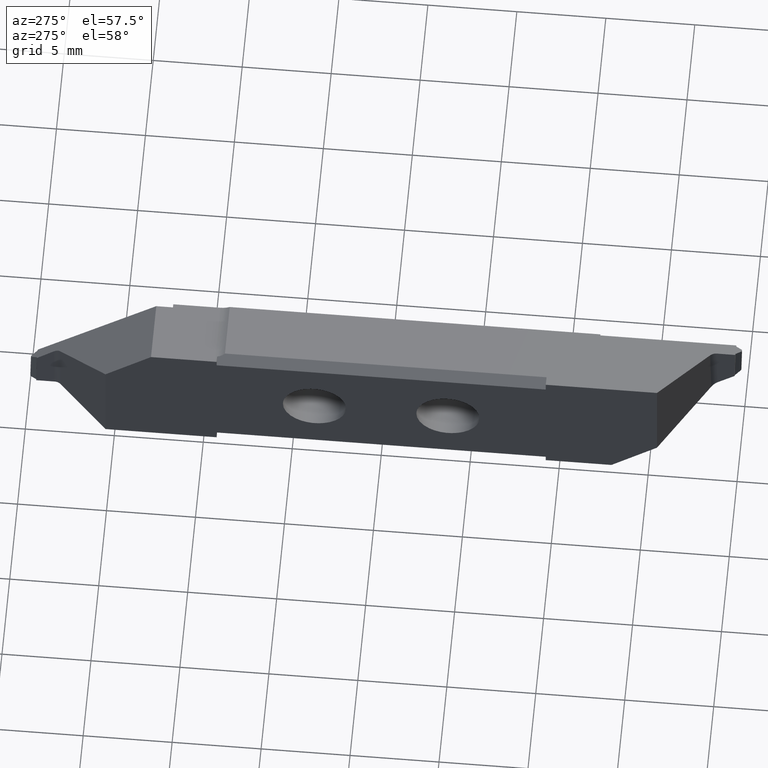
[diagram: clean part render]
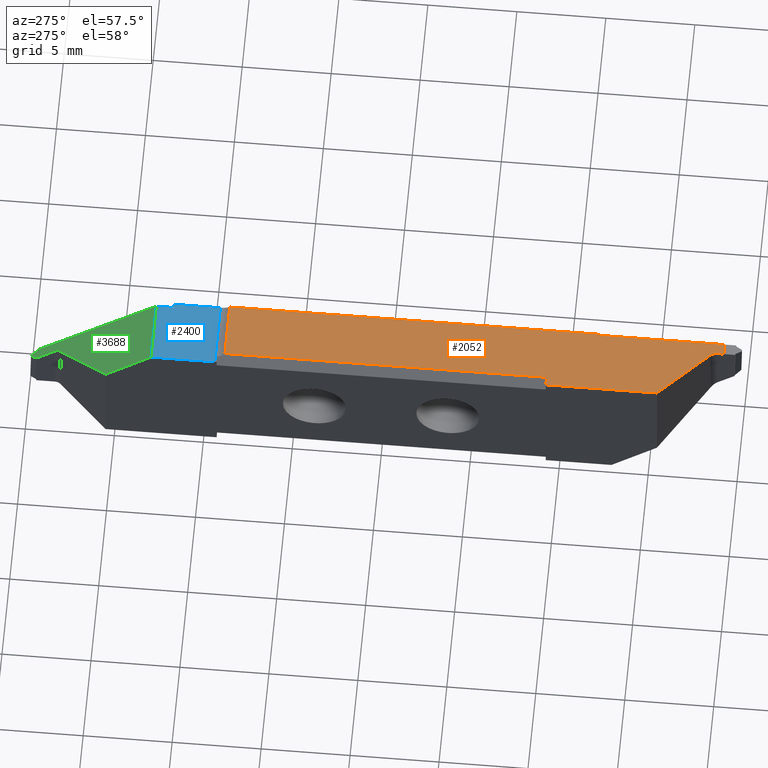
[diagram: same view with three faces highlighted in distinct colors, each labeled with its STEP entity id]
A machine part, auxiliary view with three faces highlighted in distinct colors.
Their STEP definitions:

[orange] entity #2052 — the highlighted planar face has unit normal (-0, 0, -1).
#288=CARTESIAN_POINT('',(4.337057506E-16,10.75,1.501021529E-13));
#289=VERTEX_POINT('',#288);
#300=CARTESIAN_POINT('',(4.337057506E-16,10.75,1.501021529E-13));
#301=DIRECTION('',(0.,-1.,-4.804890857E-14));
#302=VECTOR('',#301,6.247890219);
#303=LINE('',#300,#302);
#304=CARTESIAN_POINT('',(4.336483641E-16,4.502109781,-1.501021529E-13));
#305=VERTEX_POINT('',#304);
#306=EDGE_CURVE('',#289,#305,#303,.T.);
#795=CARTESIAN_POINT('',(3.53,1.,-6.963451074E-07));
#796=DIRECTION('',(0.,1.,0.));
#797=VECTOR('',#796,7.);
#798=LINE('',#795,#797);
#799=CARTESIAN_POINT('',(3.53,1.,-6.963451074E-07));
#800=VERTEX_POINT('',#799);
#801=CARTESIAN_POINT('',(3.53,8.,-6.963451074E-07));
#802=VERTEX_POINT('',#801);
#803=EDGE_CURVE('',#800,#802,#798,.T.);
#915=CARTESIAN_POINT('',(3.53,1.,-6.963451074E-07));
#916=DIRECTION('',(-1.,0.,1.972648602E-07));
#917=VECTOR('',#916,0.6349971086);
#918=LINE('',#915,#917);
#919=CARTESIAN_POINT('',(2.895002891,1.,-5.710824915E-07));
#920=VERTEX_POINT('',#919);
#921=EDGE_CURVE('',#800,#920,#918,.T.);
#1167=CARTESIAN_POINT('',(3.53,8.,-6.963451074E-07));
#1168=DIRECTION('',(1.,0.,-1.972648648E-07));
#1169=VECTOR('',#1168,0.07);
#1170=LINE('',#1167,#1169);
#1171=CARTESIAN_POINT('',(3.6,8.,-7.101536479E-07));
#1172=VERTEX_POINT('',#1171);
#1173=EDGE_CURVE('',#802,#1172,#1170,.T.);
#1721=CARTESIAN_POINT('',(2.895002891,1.399923956,-5.710824915E-07));
#1722=DIRECTION('',(0.,-1.,0.));
#1723=VECTOR('',#1722,0.3999239562);
#1724=LINE('',#1721,#1723);
#1725=CARTESIAN_POINT('',(2.895002891,1.399923956,-5.710824915E-07));
#1726=VERTEX_POINT('',#1725);
#1727=EDGE_CURVE('',#1726,#920,#1724,.T.);
#1825=CARTESIAN_POINT('',(2.748480118,1.753629663,-5.42178697E-07));
#1826=VERTEX_POINT('',#1825);
#1837=CARTESIAN_POINT('',(2.748480118,1.753629663,-5.42178697E-07));
#1838=CARTESIAN_POINT('',(2.843549883,1.658559899,-5.609326208E-07));
#1839=CARTESIAN_POINT('',(2.895002891,1.534352429,-5.710824915E-07));
#1840=CARTESIAN_POINT('',(2.895002891,1.399923956,-5.710824915E-07));
#1841=(BOUNDED_CURVE()B_SPLINE_CURVE(3,(#1837,#1838,#1839,#1840),.UNSPECIFIED.,.F.,.F.)B_SPLINE_CURVE_WITH_KNOTS((4,4),(0.,1.),.UNSPECIFIED.)CURVE()GEOMETRIC_REPRESENTATION_ITEM()RATIONAL_B_SPLINE_CURVE((1.,0.9492335932,0.9492335932,1.))REPRESENTATION_ITEM('')
);
#1842=EDGE_CURVE('',#1826,#1726,#1841,.T.);
#1877=CARTESIAN_POINT('',(4.336483641E-16,4.502109781,-1.501021529E-13));
#1878=DIRECTION('',(0.7071067812,-0.7071067812,-1.394873205E-07));
#1879=VECTOR('',#1878,3.886937859);
#1880=LINE('',#1877,#1879);
#1881=EDGE_CURVE('',#305,#1826,#1880,.T.);
#1920=CARTESIAN_POINT('',(2.2,17.27956667,-4.339825526E-07));
#1921=DIRECTION('',(-1.972648607E-07,0.,-1.));
#1922=DIRECTION('',(-1.,0.,0.));
#1923=AXIS2_PLACEMENT_3D('',#1920,#1921,#1922);
#1924=PLANE('',#1923);
#1925=ORIENTED_EDGE('Edge 542',*,*,#921,.F.);
#1934=ORIENTED_EDGE('Edge 547',*,*,#1727,.T.);
#1943=ORIENTED_EDGE('Edge 552',*,*,#1842,.T.);
#1952=ORIENTED_EDGE('Edge 557',*,*,#1881,.T.);
#1961=ORIENTED_EDGE('Edge 562',*,*,#306,.T.);
#1970=CARTESIAN_POINT('',(4.337057506E-16,10.75,1.501021529E-13));
#1971=DIRECTION('',(1.,0.,-1.972650399E-07));
#1972=VECTOR('',#1971,0.5);
#1973=LINE('',#1970,#1972);
#1974=CARTESIAN_POINT('',(0.5,10.75,-9.863236983E-08));
#1975=VERTEX_POINT('',#1974);
#1976=EDGE_CURVE('',#289,#1975,#1973,.T.);
#1977=ORIENTED_EDGE('Edge 567',*,*,#1976,.F.);
#1986=CARTESIAN_POINT('',(0.5,10.75,-9.863236983E-08));
#1987=DIRECTION('',(0.,1.,0.));
#1988=VECTOR('',#1987,18.07781198);
#1989=LINE('',#1986,#1988);
#1990=CARTESIAN_POINT('',(0.5,28.82781198,-9.86327704E-08));
#1991=VERTEX_POINT('',#1990);
#1992=EDGE_CURVE('',#1975,#1991,#1989,.T.);
#1993=ORIENTED_EDGE('Edge 572',*,*,#1992,.F.);
#2002=CARTESIAN_POINT('',(3.6,28.82781198,-7.101533575E-07));
#2003=DIRECTION('',(-1.,3.289125245E-13,1.972648347E-07));
#2004=VECTOR('',#2003,3.1);
#2005=LINE('',#2002,#2004);
#2006=CARTESIAN_POINT('',(3.6,28.82781198,-7.101533575E-07));
#2007=VERTEX_POINT('',#2006);
#2008=EDGE_CURVE('',#2007,#1991,#2005,.T.);
#2009=ORIENTED_EDGE('Edge 577',*,*,#2008,.T.);
#2018=CARTESIAN_POINT('',(3.6,28.82781198,-7.101533575E-07));
#2019=DIRECTION('',(0.,-1.,-1.394454413E-14));
#2020=VECTOR('',#2019,20.82781198);
#2021=LINE('',#2018,#2020);
#2022=EDGE_CURVE('',#2007,#1172,#2021,.T.);
#2023=ORIENTED_EDGE('Edge 237',*,*,#2022,.F.);
#2032=ORIENTED_EDGE('Edge 587',*,*,#1173,.T.);
#2041=ORIENTED_EDGE('Edge 592',*,*,#803,.T.);
#2050=EDGE_LOOP('',(#2041,#2032,#2023,#2009,#1993,#1977,#1961,#1952,#1943,#1934,#1925));
#2051=FACE_OUTER_BOUND('Loop 593',#2050,.T.);
#2052=ADVANCED_FACE('Face 594',(#2051),#1924,.F.);

[blue] entity #2400 — the highlighted planar face has unit normal (-0, 0, -1).
#208=CARTESIAN_POINT('',(-2.958972867E-08,32.93789639,-0.15));
#209=VERTEX_POINT('',#208);
#220=CARTESIAN_POINT('',(-2.958972867E-08,32.93789639,-0.15));
#221=DIRECTION('',(0.,-1.,0.));
#222=VECTOR('',#221,3.583301723);
#223=LINE('',#220,#222);
#224=CARTESIAN_POINT('',(-2.958972867E-08,29.35459467,-0.15));
#225=VERTEX_POINT('',#224);
#226=EDGE_CURVE('',#209,#225,#223,.T.);
#2245=CARTESIAN_POINT('',(3.59999997,29.35459467,-0.1500007102));
#2246=DIRECTION('',(-1.,0.,1.972648605E-07));
#2247=VECTOR('',#2246,3.6);
#2248=LINE('',#2245,#2247);
#2249=CARTESIAN_POINT('',(3.59999997,29.35459467,-0.1500007102));
#2250=VERTEX_POINT('',#2249);
#2251=EDGE_CURVE('',#2250,#225,#2248,.T.);
#2313=CARTESIAN_POINT('',(2.19999997,31.54624553,-0.150000434));
#2314=DIRECTION('',(-1.972648607E-07,0.,-1.));
#2315=DIRECTION('',(-1.,0.,0.));
#2316=AXIS2_PLACEMENT_3D('',#2313,#2314,#2315);
#2317=PLANE('',#2316);
#2318=CARTESIAN_POINT('',(3.59999997,32.,-0.1500007102));
#2319=DIRECTION('',(0.,-1.,0.));
#2320=VECTOR('',#2319,2.645405335);
#2321=LINE('',#2318,#2320);
#2322=CARTESIAN_POINT('',(3.59999997,32.,-0.1500007102));
#2323=VERTEX_POINT('',#2322);
#2324=EDGE_CURVE('',#2323,#2250,#2321,.T.);
#2325=ORIENTED_EDGE('Edge 227',*,*,#2324,.F.);
#2334=ORIENTED_EDGE('Edge 776',*,*,#2251,.F.);
#2343=ORIENTED_EDGE('Edge 125',*,*,#226,.T.);
#2352=CARTESIAN_POINT('',(3.392977711,32.93789639,-0.1500006693));
#2353=DIRECTION('',(-1.,0.,1.972648605E-07));
#2354=VECTOR('',#2353,3.39297774);
#2355=LINE('',#2352,#2354);
#2356=CARTESIAN_POINT('',(3.392977711,32.93789639,-0.1500006693));
#2357=VERTEX_POINT('',#2356);
#2358=EDGE_CURVE('',#2357,#209,#2355,.T.);
#2359=ORIENTED_EDGE('Edge 365',*,*,#2358,.T.);
#2368=CARTESIAN_POINT('',(3.392977711,32.,-0.1500006693));
#2369=DIRECTION('',(0.,1.,0.));
#2370=VECTOR('',#2369,0.9378963886);
#2371=LINE('',#2368,#2370);
#2372=CARTESIAN_POINT('',(3.392977711,32.,-0.1500006693));
#2373=VERTEX_POINT('',#2372);
#2374=EDGE_CURVE('',#2373,#2357,#2371,.T.);
#2375=ORIENTED_EDGE('Edge 1187',*,*,#2374,.T.);
#2384=CARTESIAN_POINT('',(3.59999997,32.,-0.1500007102));
#2385=DIRECTION('',(-1.,0.,1.972648609E-07));
#2386=VECTOR('',#2385,0.2070222597);
#2387=LINE('',#2384,#2386);
#2388=EDGE_CURVE('',#2323,#2373,#2387,.T.);
#2389=ORIENTED_EDGE('Edge 1157',*,*,#2388,.T.);
#2398=EDGE_LOOP('',(#2389,#2375,#2359,#2343,#2334,#2325));
#2399=FACE_OUTER_BOUND('Loop 797',#2398,.T.);
#2400=ADVANCED_FACE('Face 798',(#2399),#2317,.F.);

[green] entity #3688 — the highlighted planar face has unit normal (-0, -0.6428, -0.766).
#192=CARTESIAN_POINT('',(-4.533323789E-07,35.49789022,-2.298089879));
#193=VERTEX_POINT('',#192);
#204=CARTESIAN_POINT('',(-4.533323789E-07,35.49789022,-2.298089879));
#205=DIRECTION('',(1.267994082E-07,-0.7660444431,0.6427876097));
#206=VECTOR('',#205,3.341834607);
#207=LINE('',#204,#206);
#208=CARTESIAN_POINT('',(-2.958972867E-08,32.93789639,-0.15));
#209=VERTEX_POINT('',#208);
#210=EDGE_CURVE('',#193,#209,#207,.T.);
#2352=CARTESIAN_POINT('',(3.392977711,32.93789639,-0.1500006693));
#2353=DIRECTION('',(-1.,0.,1.972648605E-07));
#2354=VECTOR('',#2353,3.39297774);
#2355=LINE('',#2352,#2354);
#2356=CARTESIAN_POINT('',(3.392977711,32.93789639,-0.1500006693));
#2357=VERTEX_POINT('',#2356);
#2358=EDGE_CURVE('',#2357,#209,#2355,.T.);
#2519=CARTESIAN_POINT('',(3.392977711,32.93789639,-0.1500006693));
#2520=DIRECTION('',(0.01121906652,0.7659962305,-0.6427471567));
#2521=VECTOR('',#2520,8.704619328);
#2522=LINE('',#2519,#2521);
#2523=CARTESIAN_POINT('',(3.490635414,39.60560198,-5.744869993));
#2524=VERTEX_POINT('',#2523);
#2525=EDGE_CURVE('',#2357,#2524,#2522,.T.);
#2690=CARTESIAN_POINT('',(2.948312034,38.65338616,-4.945865943));
#2691=VERTEX_POINT('',#2690);
#2702=CARTESIAN_POINT('',(2.934365211,39.60560198,-5.74486988));
#2703=DIRECTION('',(0.01121932011,-0.7659962305,0.6427471523));
#2704=VECTOR('',#2703,1.243107704);
#2705=LINE('',#2702,#2704);
#2706=CARTESIAN_POINT('',(2.934365211,39.60560198,-5.74486988));
#2707=VERTEX_POINT('',#2706);
#2708=EDGE_CURVE('',#2707,#2691,#2705,.T.);
#2773=CARTESIAN_POINT('',(2.934365211,39.60560198,-5.74486988));
#2774=DIRECTION('',(0.9989315379,0.03540228453,-0.02970624095));
#2775=VECTOR('',#2774,0.02108119643);
#2776=LINE('',#2773,#2775);
#2777=CARTESIAN_POINT('',(2.955423883,39.6063483,-5.745496123));
#2778=VERTEX_POINT('',#2777);
#2779=EDGE_CURVE('',#2707,#2778,#2776,.T.);
#2850=CARTESIAN_POINT('',(2.996755376,39.63167761,-5.766749946));
#2851=VERTEX_POINT('',#2850);
#2862=CARTESIAN_POINT('',(2.996755376,39.63167761,-5.766749946));
#2863=CARTESIAN_POINT('',(2.988073028,39.61618554,-5.753750553));
#2864=CARTESIAN_POINT('',(2.973039685,39.60697261,-5.746019982));
#2865=CARTESIAN_POINT('',(2.955423883,39.6063483,-5.745496123));
#2866=(BOUNDED_CURVE()B_SPLINE_CURVE(3,(#2862,#2863,#2864,#2865),.UNSPECIFIED.,.F.,.F.)B_SPLINE_CURVE_WITH_KNOTS((4,4),(0.,1.),.UNSPECIFIED.)CURVE()GEOMETRIC_REPRESENTATION_ITEM()RATIONAL_B_SPLINE_CURVE((1.,0.9164404626,0.9164404626,1.))REPRESENTATION_ITEM('')
);
#2867=EDGE_CURVE('',#2851,#2778,#2866,.T.);
#2942=CARTESIAN_POINT('',(2.996755376,39.63167761,-5.766749946));
#2943=DIRECTION('',(0.3945006982,0.7039148613,-0.5906547783));
#2944=VECTOR('',#2943,0.4147697419);
#2945=LINE('',#2942,#2944);
#2946=CARTESIAN_POINT('',(3.160382328,39.9236402,-6.011735676));
#2947=VERTEX_POINT('',#2946);
#2948=EDGE_CURVE('',#2851,#2947,#2945,.T.);
#2997=CARTESIAN_POINT('',(3.212500308,39.96351802,-6.045197154));
#2998=CARTESIAN_POINT('',(3.190113881,39.95797975,-6.040549987));
#2999=CARTESIAN_POINT('',(3.171754876,39.94393244,-6.028762895));
#3000=CARTESIAN_POINT('',(3.160382328,39.9236402,-6.011735676));
#3001=(BOUNDED_CURVE()B_SPLINE_CURVE(3,(#2997,#2998,#2999,#3000),.UNSPECIFIED.,.F.,.F.)B_SPLINE_CURVE_WITH_KNOTS((4,4),(0.,1.),.UNSPECIFIED.)CURVE()GEOMETRIC_REPRESENTATION_ITEM()RATIONAL_B_SPLINE_CURVE((1.,0.9462745819,0.9462745819,1.))REPRESENTATION_ITEM('')
);
#3002=CARTESIAN_POINT('',(3.212500308,39.96351802,-6.045197154));
#3003=VERTEX_POINT('',#3002);
#3004=EDGE_CURVE('',#3003,#2947,#3001,.T.);
#3114=CARTESIAN_POINT('',(3.2646183,39.9236402,-6.011735697));
#3115=CARTESIAN_POINT('',(3.253245746,39.94393244,-6.028762911));
#3116=CARTESIAN_POINT('',(3.234886736,39.95797975,-6.040549996));
#3117=CARTESIAN_POINT('',(3.212500308,39.96351802,-6.045197154));
#3118=(BOUNDED_CURVE()B_SPLINE_CURVE(3,(#3114,#3115,#3116,#3117),.UNSPECIFIED.,.F.,.F.)B_SPLINE_CURVE_WITH_KNOTS((4,4),(0.,1.),.UNSPECIFIED.)CURVE()GEOMETRIC_REPRESENTATION_ITEM()RATIONAL_B_SPLINE_CURVE((1.,0.9462745818,0.9462745818,1.))REPRESENTATION_ITEM('')
);
#3119=CARTESIAN_POINT('',(3.2646183,39.9236402,-6.011735697));
#3120=VERTEX_POINT('',#3119);
#3121=EDGE_CURVE('',#3120,#3003,#3118,.T.);
#3161=CARTESIAN_POINT('',(3.2646183,39.9236402,-6.011735697));
#3162=DIRECTION('',(0.3945009313,-0.7039148613,0.5906546227));
#3163=VECTOR('',#3162,0.4147697417);
#3164=LINE('',#3161,#3163);
#3165=CARTESIAN_POINT('',(3.428245349,39.63167761,-5.766750032));
#3166=VERTEX_POINT('',#3165);
#3167=EDGE_CURVE('',#3120,#3166,#3164,.T.);
#3238=CARTESIAN_POINT('',(3.46957685,39.6063483,-5.745496224));
#3239=VERTEX_POINT('',#3238);
#3250=CARTESIAN_POINT('',(3.46957685,39.6063483,-5.745496224));
#3251=CARTESIAN_POINT('',(3.451961048,39.60697261,-5.746020076));
#3252=CARTESIAN_POINT('',(3.436927702,39.61618554,-5.753750641));
#3253=CARTESIAN_POINT('',(3.428245349,39.63167761,-5.766750032));
#3254=(BOUNDED_CURVE()B_SPLINE_CURVE(3,(#3250,#3251,#3252,#3253),.UNSPECIFIED.,.F.,.F.)B_SPLINE_CURVE_WITH_KNOTS((4,4),(0.,1.),.UNSPECIFIED.)CURVE()GEOMETRIC_REPRESENTATION_ITEM()RATIONAL_B_SPLINE_CURVE((1.,0.9164404627,0.9164404627,1.))REPRESENTATION_ITEM('')
);
#3255=EDGE_CURVE('',#3239,#3166,#3254,.T.);
#3314=CARTESIAN_POINT('',(2.948312034,38.65338616,-4.945865943));
#3315=CARTESIAN_POINT('',(2.950252546,38.52089818,-4.834695326));
#3316=CARTESIAN_POINT('',(2.900592507,38.39848366,-4.731977337));
#3317=CARTESIAN_POINT('',(2.806895101,38.30478624,-4.653355846));
#3318=(BOUNDED_CURVE()B_SPLINE_CURVE(3,(#3314,#3315,#3316,#3317),.UNSPECIFIED.,.F.,.F.)B_SPLINE_CURVE_WITH_KNOTS((4,4),(0.,1.),.UNSPECIFIED.)CURVE()GEOMETRIC_REPRESENTATION_ITEM()RATIONAL_B_SPLINE_CURVE((1.,0.9492335932,0.9492335932,1.))REPRESENTATION_ITEM('')
);
#3319=CARTESIAN_POINT('',(2.806895101,38.30478624,-4.653355846));
#3320=VERTEX_POINT('',#3319);
#3321=EDGE_CURVE('',#2691,#3320,#3318,.T.);
#3516=CARTESIAN_POINT('',(3.46957685,39.6063483,-5.745496224));
#3517=DIRECTION('',(0.9989315497,-0.03540228453,0.02970584684));
#3518=VECTOR('',#3517,0.0210810878);
#3519=LINE('',#3516,#3518);
#3520=EDGE_CURVE('',#3239,#2524,#3519,.T.);
#3550=CARTESIAN_POINT('',(2.199999334,36.78302452,-3.376446029));
#3551=DIRECTION('',(-1.511136504E-07,-0.6427876097,-0.7660444431));
#3552=DIRECTION('',(-1.157597721E-07,-0.4924038765,0.4131759112));
#3553=AXIS2_PLACEMENT_3D('',#3550,#3551,#3552);
#3554=PLANE('',#3553);
#3555=ORIENTED_EDGE('Edge 320',*,*,#2779,.F.);
#3564=ORIENTED_EDGE('Edge 325',*,*,#2867,.T.);
#3573=ORIENTED_EDGE('Edge 330',*,*,#2948,.F.);
#3582=ORIENTED_EDGE('Edge 335',*,*,#3004,.T.);
#3591=ORIENTED_EDGE('Edge 340',*,*,#3121,.T.);
#3600=ORIENTED_EDGE('Edge 345',*,*,#3167,.F.);
#3609=ORIENTED_EDGE('Edge 350',*,*,#3255,.T.);
#3618=ORIENTED_EDGE('Edge 355',*,*,#3520,.F.);
#3627=ORIENTED_EDGE('Edge 1192',*,*,#2525,.T.);
#3636=ORIENTED_EDGE('Edge 365',*,*,#2358,.F.);
#3645=ORIENTED_EDGE('Edge 120',*,*,#210,.T.);
#3654=CARTESIAN_POINT('',(2.806895101,38.30478624,-4.653355846));
#3655=DIRECTION('',(-0.6081203018,-0.6081204024,0.5102737253));
#3656=VECTOR('',#3655,4.615691247);
#3657=LINE('',#3654,#3656);
#3658=EDGE_CURVE('',#3320,#193,#3657,.T.);
#3659=ORIENTED_EDGE('Edge 375',*,*,#3658,.T.);
#3668=ORIENTED_EDGE('Edge 380',*,*,#3321,.T.);
#3677=ORIENTED_EDGE('Edge 385',*,*,#2708,.T.);
#3686=EDGE_LOOP('',(#3677,#3668,#3659,#3645,#3636,#3627,#3618,#3609,#3600,#3591,#3582,#3573,#3564,#3555));
#3687=FACE_OUTER_BOUND('Loop 386',#3686,.T.);
#3688=ADVANCED_FACE('Face 387',(#3687),#3554,.F.);